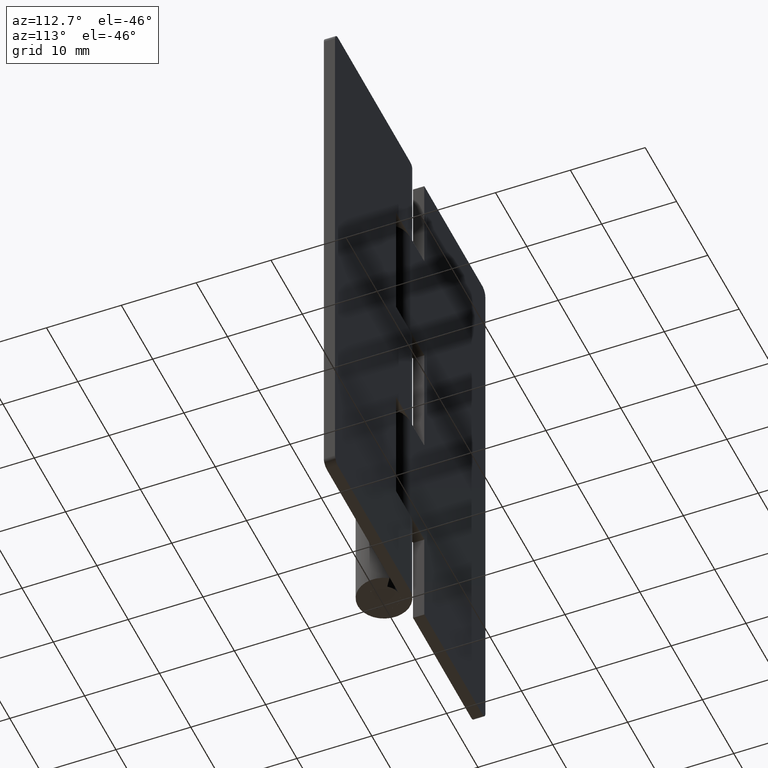
[diagram: clean part render]
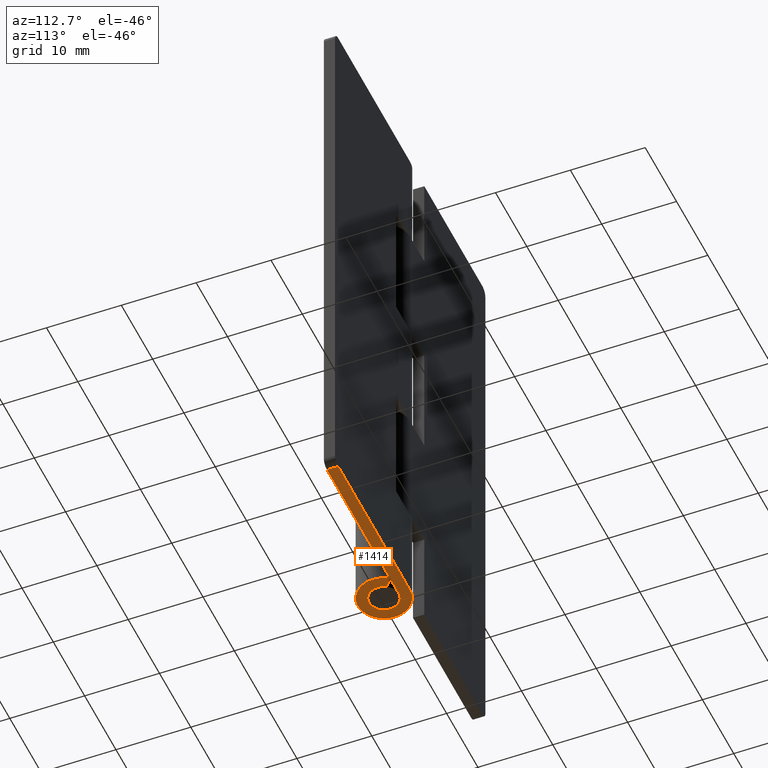
[diagram: same view with one face highlighted and labeled with its STEP entity id]
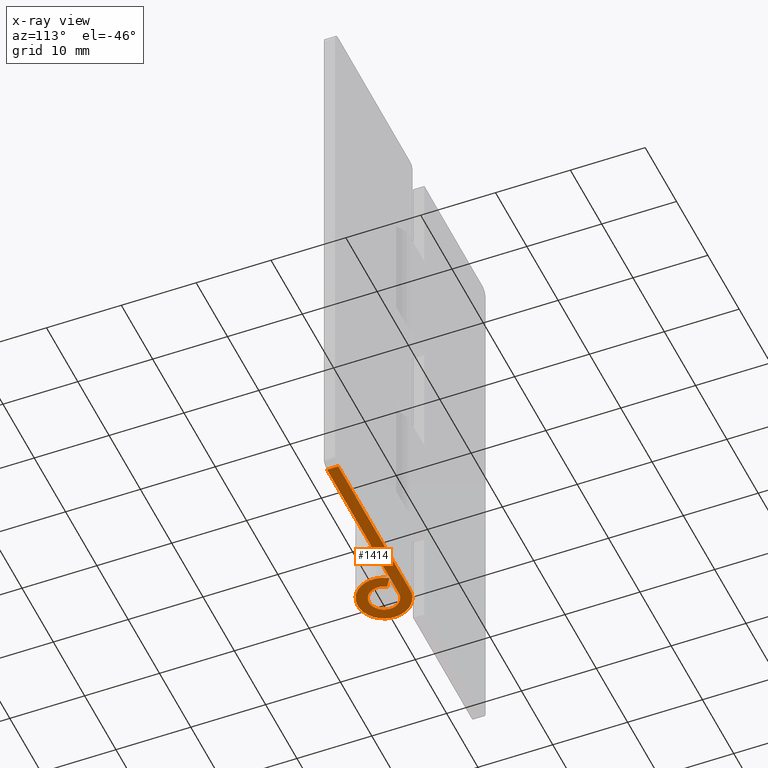
[diagram: x-ray of the same camera — body ghosted, the highlighted face saturated]
A machine part, auxiliary view. The second image highlights one B-rep face of the part: STEP entity #1414.
The next image is the same camera in x-ray: the body ghosted, the highlighted face saturated — about 0% of this face is hidden behind the body in this view.
In plain terms, the highlighted face is a freeform B-spline surface patch.
Its self-contained STEP definition (entity closure, byte-faithful):
#887=CARTESIAN_POINT('',(23.0,3.500000000000000,0.0));
#888=VERTEX_POINT('',#887);
#909=CARTESIAN_POINT('',(23.0,2.0,0.0));
#910=VERTEX_POINT('',#909);
#924=CARTESIAN_POINT('',(23.0,3.500000000000000,0.0));
#925=CARTESIAN_POINT('',(23.0,2.0,0.0));
#926=QUASI_UNIFORM_CURVE('',1,(#924,#925),.UNSPECIFIED.,.F.,.U.);
#927=EDGE_CURVE('',#888,#910,#926,.T.);
#1345=CARTESIAN_POINT('',(-4.822925875396731,-3.846651091138244,0.0));
#1346=CARTESIAN_POINT('',(24.323640023224272,-3.846651091138244,0.0));
#1347=CARTESIAN_POINT('',(-4.822925875396731,3.849507505588909,0.0));
#1348=CARTESIAN_POINT('',(24.323640023224272,3.849507505588909,0.0));
#1349=B_SPLINE_SURFACE_WITH_KNOTS('',1,1,((#1345,#1347),(#1346,#1348)),.UNSPECIFIED.,.F.,.F.,.U.,(2,2),(2,2),(0.0,29.146565898620999),(0.0,7.696158596727152),.UNSPECIFIED.);
#1350=CARTESIAN_POINT('',(0.0,3.500000000000000,0.0));
#1351=VERTEX_POINT('',#1350);
#1352=CARTESIAN_POINT('',(0.0,3.500000000000000,0.0));
#1353=CARTESIAN_POINT('',(23.0,3.500000000000000,0.0));
#1354=QUASI_UNIFORM_CURVE('',1,(#1352,#1353),.UNSPECIFIED.,.F.,.U.);
#1355=EDGE_CURVE('',#1351,#888,#1354,.T.);
#1356=ORIENTED_EDGE('',*,*,#1355,.T.);
#1357=ORIENTED_EDGE('',*,*,#927,.T.);
#1358=CARTESIAN_POINT('',(0.0,2.0,0.0));
#1359=VERTEX_POINT('',#1358);
#1360=CARTESIAN_POINT('',(23.0,2.0,0.0));
#1361=CARTESIAN_POINT('',(0.0,2.0,0.0));
#1362=QUASI_UNIFORM_CURVE('',1,(#1360,#1361),.UNSPECIFIED.,.F.,.U.);
#1363=EDGE_CURVE('',#910,#1359,#1362,.T.);
#1364=ORIENTED_EDGE('',*,*,#1363,.T.);
#1365=CARTESIAN_POINT('',(1.660833329066700,1.114285714285716,0.0));
#1366=VERTEX_POINT('',#1365);
#1367=CARTESIAN_POINT('',(1.660833329066698,1.114285714285716,0.0));
#1368=CARTESIAN_POINT('',(2.530854670114226,-0.182473655134445,0.0));
#1369=CARTESIAN_POINT('',(1.483807222493547,-1.341013097056097,0.0));
#1370=CARTESIAN_POINT('',(0.436759774872868,-2.499552538977749,0.0));
#1371=CARTESIAN_POINT('',(-0.941123948114321,-1.764733893335115,0.0));
#1372=CARTESIAN_POINT('',(-2.319007671101507,-1.029915247692483,0.0));
#1373=CARTESIAN_POINT('',(-1.940292218542124,0.485042376153757,0.0));
#1374=CARTESIAN_POINT('',(-1.561576765982740,2.000000000000000,0.0));
#1375=CARTESIAN_POINT('',(0.0,2.0,0.0));
#1383=(BOUNDED_CURVE()B_SPLINE_CURVE(2,(#1367,#1368,#1369,#1370,#1371,#1372,#1373,#1374,#1375),.UNSPECIFIED.,.F.,.U.)B_SPLINE_CURVE_WITH_KNOTS((3,2,2,2,3),(0.0,0.250000000000000,0.500000000000000,0.750000000000000,1.0),.UNSPECIFIED.)CURVE()GEOMETRIC_REPRESENTATION_ITEM()RATIONAL_B_SPLINE_CURVE((1.0,0.788200858942972,1.0,0.788200858942972,1.0,0.788200858942972,1.0,0.788200858942972,1.0))REPRESENTATION_ITEM(''));
#1384=EDGE_CURVE('',#1366,#1359,#1383,.T.);
#1385=ORIENTED_EDGE('',*,*,#1384,.F.);
#1386=CARTESIAN_POINT('',(2.906458325866725,1.950000000000000,0.0));
#1387=VERTEX_POINT('',#1386);
#1388=CARTESIAN_POINT('',(1.660833329066700,1.114285714285716,0.0));
#1389=CARTESIAN_POINT('',(2.906458325866725,1.950000000000000,0.0));
#1390=QUASI_UNIFORM_CURVE('',1,(#1388,#1389),.UNSPECIFIED.,.F.,.U.);
#1391=EDGE_CURVE('',#1366,#1387,#1390,.T.);
#1392=ORIENTED_EDGE('',*,*,#1391,.T.);
#1393=CARTESIAN_POINT('',(2.906458325866724,1.950000000000000,0.0));
#1394=CARTESIAN_POINT('',(4.428995672699894,-0.319328896485281,0.0));
#1395=CARTESIAN_POINT('',(2.596662639363708,-2.346772919848170,0.0));
#1396=CARTESIAN_POINT('',(0.764329606027520,-4.374216943211062,0.0));
#1397=CARTESIAN_POINT('',(-1.646966909200061,-3.088284313336452,0.0));
#1398=CARTESIAN_POINT('',(-4.058263424427635,-1.802351683461845,0.0));
#1399=CARTESIAN_POINT('',(-3.395511382448717,0.848824158269075,0.0));
#1400=CARTESIAN_POINT('',(-2.732759340469795,3.500000000000000,0.0));
#1401=CARTESIAN_POINT('',(0.0,3.500000000000000,0.0));
#1409=(BOUNDED_CURVE()B_SPLINE_CURVE(2,(#1393,#1394,#1395,#1396,#1397,#1398,#1399,#1400,#1401),.UNSPECIFIED.,.F.,.U.)B_SPLINE_CURVE_WITH_KNOTS((3,2,2,2,3),(0.0,0.250000000000000,0.500000000000000,0.750000000000000,1.0),.UNSPECIFIED.)CURVE()GEOMETRIC_REPRESENTATION_ITEM()RATIONAL_B_SPLINE_CURVE((1.0,0.788200858942973,1.0,0.788200858942973,1.0,0.788200858942973,1.0,0.788200858942973,1.0))REPRESENTATION_ITEM(''));
#1410=EDGE_CURVE('',#1387,#1351,#1409,.T.);
#1411=ORIENTED_EDGE('',*,*,#1410,.T.);
#1412=EDGE_LOOP('',(#1356,#1357,#1364,#1385,#1392,#1411));
#1413=FACE_OUTER_BOUND('',#1412,.T.);
#1414=ADVANCED_FACE('',(#1413),#1349,.F.);